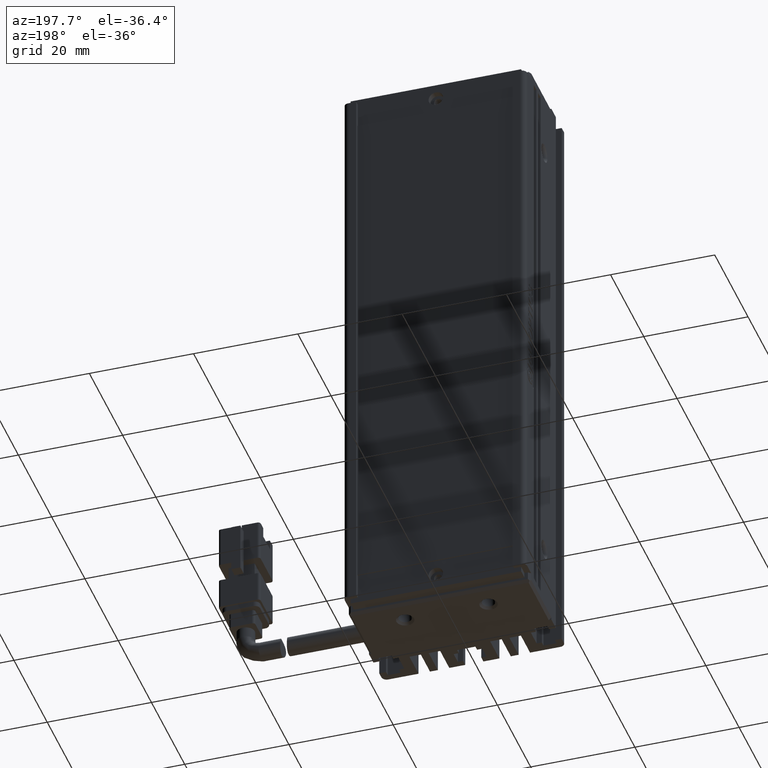
[diagram: clean part render]
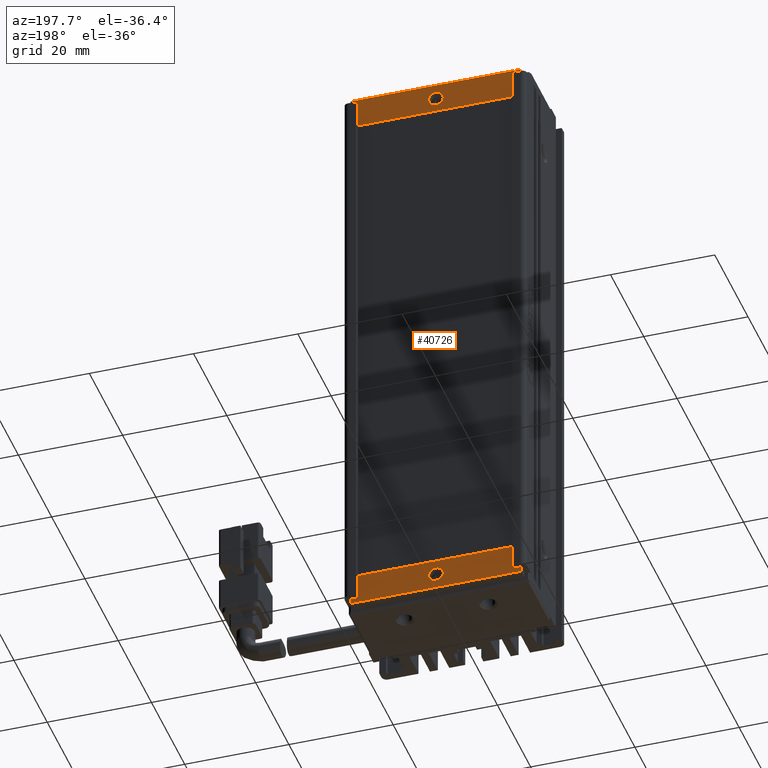
[diagram: same view with one face highlighted and labeled with its STEP entity id]
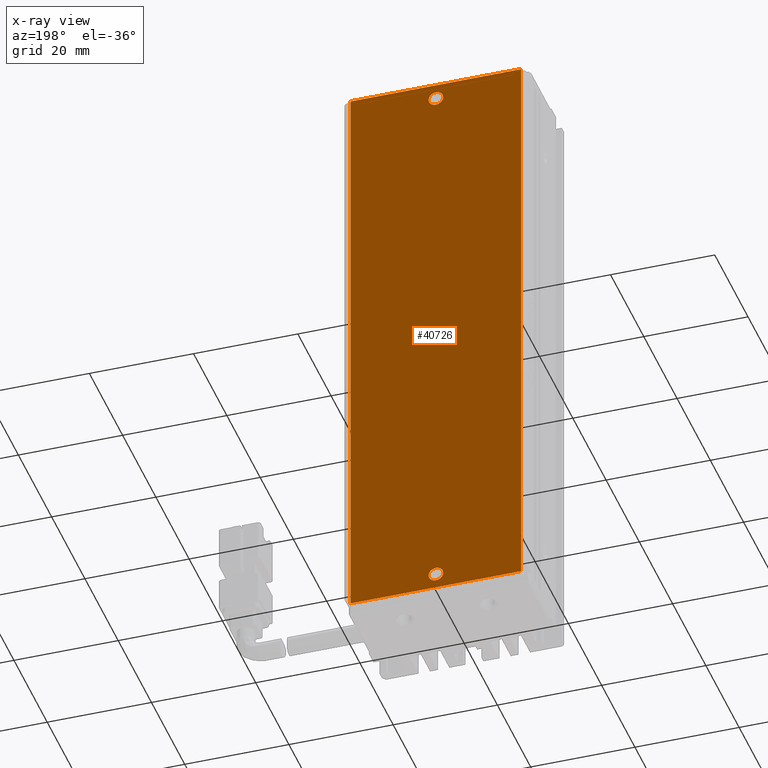
[diagram: x-ray of the same camera — body ghosted, the highlighted face saturated]
A machine part, auxiliary view. The second image highlights one B-rep face of the part: STEP entity #40726.
The next image is the same camera in x-ray: the body ghosted, the highlighted face saturated — about 0% of this face is hidden behind the body in this view.
In plain terms, the highlighted planar face has unit normal (0, 1, 0).
Its self-contained STEP definition (entity closure, byte-faithful):
#9 = VERTEX_POINT ( 'NONE', #33906 ) ;
#29 = AXIS2_PLACEMENT_3D ( 'NONE', #46298, #7851, #29311 ) ;
#855 = VERTEX_POINT ( 'NONE', #18383 ) ;
#1621 = DIRECTION ( 'NONE',  ( 0.0000000000000000000, 0.0000000000000000000, 1.000000000000000000 ) ) ;
#2007 = CARTESIAN_POINT ( 'NONE',  ( 57.27537974683544100, 34.09073232304837800, -57.99999999999998600 ) ) ;
#2230 = CIRCLE ( 'NONE', #25302, 1.399999999999998600 ) ;
#2798 = ORIENTED_EDGE ( 'NONE', *, *, #8989, .T. ) ;
#3690 = EDGE_CURVE ( 'NONE', #51675, #4087, #34533, .T. ) ;
#4087 = VERTEX_POINT ( 'NONE', #15982 ) ;
#4760 = DIRECTION ( 'NONE',  ( -0.0000000000000000000, -1.000000000000000000, -0.0000000000000000000 ) ) ;
#5295 = ORIENTED_EDGE ( 'NONE', *, *, #3690, .T. ) ;
#6182 = DIRECTION ( 'NONE',  ( 1.000000000000000000, 0.0000000000000000000, 1.387778780781445400E-016 ) ) ;
#6480 = CIRCLE ( 'NONE', #51859, 1.400000000000012300 ) ;
#7182 = EDGE_LOOP ( 'NONE', ( #34420, #49610 ) ) ;
#7221 = DIRECTION ( 'NONE',  ( -1.631319816340922500E-017, -0.0000000000000000000, 1.000000000000000000 ) ) ;
#7320 = AXIS2_PLACEMENT_3D ( 'NONE', #2007, #14747, #39737 ) ;
#7851 = DIRECTION ( 'NONE',  ( -0.0000000000000000000, -1.000000000000000000, -0.0000000000000000000 ) ) ;
#8777 = ORIENTED_EDGE ( 'NONE', *, *, #28666, .T. ) ;
#8989 = EDGE_CURVE ( 'NONE', #16650, #9, #33413, .T. ) ;
#9673 = FACE_OUTER_BOUND ( 'NONE', #52376, .T. ) ;
#12235 = ORIENTED_EDGE ( 'NONE', *, *, #33042, .T. ) ;
#13865 = EDGE_CURVE ( 'NONE', #52166, #23808, #43730, .T. ) ;
#14193 = LINE ( 'NONE', #24273, #17507 ) ;
#14559 = CARTESIAN_POINT ( 'NONE',  ( 40.92537974683542500, 34.09073232304837800, -61.00000000000000000 ) ) ;
#14747 = DIRECTION ( 'NONE',  ( 0.0000000000000000000, 1.000000000000000000, 0.0000000000000000000 ) ) ;
#14769 = CIRCLE ( 'NONE', #29, 1.400000000000012300 ) ;
#15672 = CARTESIAN_POINT ( 'NONE',  ( 24.57537974683543800, 34.09073232304837800, -172.0000000000000000 ) ) ;
#15982 = CARTESIAN_POINT ( 'NONE',  ( 57.27537974683544100, 34.09073232304837800, -57.99999999999998600 ) ) ;
#16010 = VECTOR ( 'NONE', #32219, 1000.000000000000000 ) ;
#16650 = VERTEX_POINT ( 'NONE', #24291 ) ;
#17507 = VECTOR ( 'NONE', #7221, 1000.000000000000000 ) ;
#18383 = CARTESIAN_POINT ( 'NONE',  ( 40.92537974683543900, 34.09073232304837800, -170.4000000000000100 ) ) ;
#19951 = VECTOR ( 'NONE', #26105, 1000.000000000000000 ) ;
#22344 = EDGE_LOOP ( 'NONE', ( #2798, #31714 ) ) ;
#22915 = CARTESIAN_POINT ( 'NONE',  ( 24.57537974683543400, 34.09073232304837800, -57.99999999999999300 ) ) ;
#23318 = VECTOR ( 'NONE', #6182, 1000.000000000000000 ) ;
#23808 = VERTEX_POINT ( 'NONE', #15672 ) ;
#24273 = CARTESIAN_POINT ( 'NONE',  ( 24.57537974683543400, 34.09073232304837800, -57.99999999999999300 ) ) ;
#24291 = CARTESIAN_POINT ( 'NONE',  ( 40.92537974683542500, 34.09073232304837800, -59.60000000000000100 ) ) ;
#25302 = AXIS2_PLACEMENT_3D ( 'NONE', #14559, #4760, #1621 ) ;
#25364 = EDGE_CURVE ( 'NONE', #9, #16650, #2230, .T. ) ;
#26105 = DIRECTION ( 'NONE',  ( -1.000000000000000000, -0.0000000000000000000, -1.387778780781445400E-016 ) ) ;
#28335 = EDGE_CURVE ( 'NONE', #855, #49917, #14769, .T. ) ;
#28666 = EDGE_CURVE ( 'NONE', #4087, #52166, #30610, .T. ) ;
#29311 = DIRECTION ( 'NONE',  ( 0.0000000000000000000, 0.0000000000000000000, 1.000000000000000000 ) ) ;
#29882 = EDGE_CURVE ( 'NONE', #49917, #855, #6480, .T. ) ;
#30124 = DIRECTION ( 'NONE',  ( 0.0000000000000000000, 0.0000000000000000000, 1.000000000000000000 ) ) ;
#30610 = LINE ( 'NONE', #44054, #16010 ) ;
#31714 = ORIENTED_EDGE ( 'NONE', *, *, #25364, .T. ) ;
#32219 = DIRECTION ( 'NONE',  ( 1.704289730784228200E-017, -0.0000000000000000000, -1.000000000000000000 ) ) ;
#32644 = AXIS2_PLACEMENT_3D ( 'NONE', #46554, #34378, #30124 ) ;
#33042 = EDGE_CURVE ( 'NONE', #23808, #51675, #14193, .T. ) ;
#33413 = CIRCLE ( 'NONE', #32644, 1.399999999999998600 ) ;
#33906 = CARTESIAN_POINT ( 'NONE',  ( 40.92537974683542500, 34.09073232304837800, -62.39999999999999900 ) ) ;
#34378 = DIRECTION ( 'NONE',  ( -0.0000000000000000000, -1.000000000000000000, -0.0000000000000000000 ) ) ;
#34420 = ORIENTED_EDGE ( 'NONE', *, *, #29882, .T. ) ;
#34533 = LINE ( 'NONE', #22915, #23318 ) ;
#35501 = PLANE ( 'NONE',  #7320 ) ;
#36718 = CARTESIAN_POINT ( 'NONE',  ( 24.57537974683543100, 34.09073232304837800, -57.99999999999999300 ) ) ;
#37718 = CARTESIAN_POINT ( 'NONE',  ( 40.92537974683543900, 34.09073232304837800, -168.9999999999999700 ) ) ;
#39737 = DIRECTION ( 'NONE',  ( -1.387778780781445400E-016, 0.0000000000000000000, 1.000000000000000000 ) ) ;
#40726 = ADVANCED_FACE ( 'NONE', ( #9673, #52636, #53331 ), #35501, .T. ) ;
#42910 = CARTESIAN_POINT ( 'NONE',  ( 24.57537974683543800, 34.09073232304837800, -172.0000000000000000 ) ) ;
#43730 = LINE ( 'NONE', #42910, #19951 ) ;
#44054 = CARTESIAN_POINT ( 'NONE',  ( 57.27537974683544100, 34.09073232304837800, -57.99999999999998600 ) ) ;
#45580 = CARTESIAN_POINT ( 'NONE',  ( 40.92537974683543900, 34.09073232304837800, -167.5999999999999700 ) ) ;
#46298 = CARTESIAN_POINT ( 'NONE',  ( 40.92537974683543900, 34.09073232304837800, -168.9999999999999700 ) ) ;
#46401 = DIRECTION ( 'NONE',  ( -0.0000000000000000000, -1.000000000000000000, -0.0000000000000000000 ) ) ;
#46531 = CARTESIAN_POINT ( 'NONE',  ( 57.27537974683544100, 34.09073232304837800, -172.0000000000000000 ) ) ;
#46554 = CARTESIAN_POINT ( 'NONE',  ( 40.92537974683542500, 34.09073232304837800, -61.00000000000000000 ) ) ;
#49610 = ORIENTED_EDGE ( 'NONE', *, *, #28335, .T. ) ;
#49917 = VERTEX_POINT ( 'NONE', #45580 ) ;
#50113 = DIRECTION ( 'NONE',  ( 0.0000000000000000000, 0.0000000000000000000, 1.000000000000000000 ) ) ;
#50685 = ORIENTED_EDGE ( 'NONE', *, *, #13865, .T. ) ;
#51675 = VERTEX_POINT ( 'NONE', #36718 ) ;
#51859 = AXIS2_PLACEMENT_3D ( 'NONE', #37718, #46401, #50113 ) ;
#52166 = VERTEX_POINT ( 'NONE', #46531 ) ;
#52376 = EDGE_LOOP ( 'NONE', ( #50685, #12235, #5295, #8777 ) ) ;
#52636 = FACE_BOUND ( 'NONE', #22344, .T. ) ;
#53331 = FACE_BOUND ( 'NONE', #7182, .T. ) ;